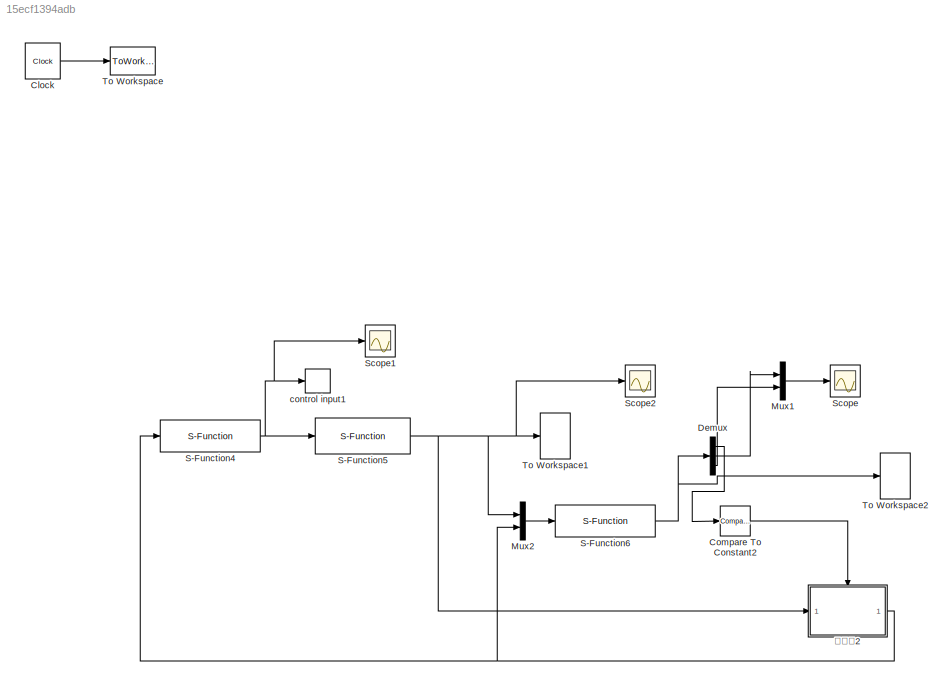
MODEL slx_15ecf1394adb
KIND model
CONFIG AbsTol = auto
CONFIG FixedStep = 0.001
CONFIG MaxStep = auto
CONFIG MinStep = auto
CONFIG RelTol = 1e-3
CONFIG SampleTimeConstraint = Unconstrained
CONFIG Solver = ode4
CONFIG SolverMode = Auto
CONFIG SolverName = ode4
CONFIG StartTime = 0.0
CONFIG StopTime = 5
BLOCK [Clock] Clock
  DisplayTime = on
BLOCK [Reference] Compare To Constant2  REF=simulink/Logic and Bit
Operations/Compare
To Constant
  Ports = [1, 1]
  SourceBlock = simulink/Logic and Bit\nOperations/Compare\nTo Constant
  SourceType = Compare To Constant
BLOCK [Demux] Demux
  DisplayOption = bar
  Outputs = 3
  Ports = [1, 3]
BLOCK [Mux] Mux1
  DisplayOption = bar
  Inputs = 2
  Ports = [2, 1]
BLOCK [Mux] Mux2
  DisplayOption = bar
  Inputs = 2
  Ports = [2, 1]
BLOCK [S-Function] S-Function4
  EnableBusSupport = off
  FunctionName = ctrl
  Ports = [1, 1]
  SFunctionDeploymentMode = off
BLOCK [S-Function] S-Function5
  EnableBusSupport = off
  FunctionName = plant
  Ports = [1, 1]
  SFunctionDeploymentMode = off
BLOCK [S-Function] S-Function6
  EnableBusSupport = off
  FunctionName = trigf
  Ports = [1, 1]
  SFunctionDeploymentMode = off
BLOCK [Scope] Scope
  Floating = off
  NumInputPorts = 1
  Ports = [1]
  ScopeSpecificationString = Simulink.scopes.TimeScopeBlockCfg('CurrentConfiguration', extmgr.ConfigurationSet(extmgr.Configuration('Core','General UI',true),extmgr.Configuration('Core','Source UI',true),extmgr.Configuration('Sources','WiredSimulink',true),extmgr.Configuration('Visuals','Time Domain',true,'SerializedDisplays',{struct('MinYLimReal','-0.88105','MaxYLimReal','7.92945','YLabelReal','','MinYLimMag','0.00000','MaxY...<+1367ch>
BLOCK [Scope] Scope1
  Floating = off
  NumInputPorts = 1
  Ports = [1]
  ScopeSpecificationString = Simulink.scopes.TimeScopeBlockCfg('CurrentConfiguration', extmgr.ConfigurationSet(extmgr.Configuration('Core','General UI',true),extmgr.Configuration('Core','Source UI',true),extmgr.Configuration('Sources','WiredSimulink',true,'DataLoggingVariableName','ScopeData1'),extmgr.Configuration('Visuals','Time Domain',true,'SerializedDisplays',{struct('MinYLimReal','-21.20799','MaxYLimReal','14.10197','YL...<+1472ch>
BLOCK [Scope] Scope2
  Floating = off
  NumInputPorts = 1
  Ports = [1]
  ScopeSpecificationString = Simulink.scopes.TimeScopeBlockCfg('CurrentConfiguration', extmgr.ConfigurationSet(extmgr.Configuration('Core','General UI',true),extmgr.Configuration('Core','Source UI',true),extmgr.Configuration('Sources','WiredSimulink',true,'DataLoggingVariableName','ScopeData2'),extmgr.Configuration('Visuals','Time Domain',true,'SerializedDisplays',{struct('MinYLimReal','-3.875','MaxYLimReal','4.875','YLabelRe...<+1454ch>
BLOCK [ToWorkspace] To Workspace
  MaxDataPoints = inf
  Ports = [1]
  SampleTime = -1
  VariableName = t
BLOCK [ToWorkspace] To Workspace1
  MaxDataPoints = inf
  Ports = [1]
  SampleTime = -1
  VariableName = y1
BLOCK [ToWorkspace] To Workspace2
  MaxDataPoints = inf
  Ports = [1]
  SampleTime = -1
  VariableName = y
BLOCK [ToWorkspace] control input1
  MaxDataPoints = inf
  Ports = [1]
  SampleTime = -1
  VariableName = ut1
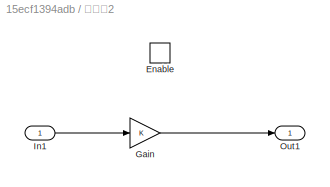
BLOCK [SubSystem] 子系统2
  Ports = [1, 1, 1]
  RequestExecContextInheritance = off
  TreatAsAtomicUnit = on
BLOCK [EnablePort] 子系统2/Enable
  Ports = []
BLOCK [Gain] 子系统2/Gain
  OutDataTypeStr = Inherit: Inherit via internal rule
  ParamDataTypeStr = Inherit: Inherit via internal rule
  SaturateOnIntegerOverflow = off
BLOCK [Inport] 子系统2/In1
  IconDisplay = Port number
BLOCK [Outport] 子系统2/Out1
  IconDisplay = Port number
LINE Clock:1 -> To Workspace:1
LINE Compare To Constant2:1 -> 子系统2:enable
LINE Demux:1 -> Compare To Constant2:1
LINE Demux:2 -> Mux1:1
LINE Demux:3 -> Mux1:2
LINE Mux1:1 -> Scope:1
LINE Mux2:1 -> S-Function6:1
NET S-Function4:1 -> S-Function5:1, Scope1:1, control input1:1
NET S-Function5:1 -> Mux2:1, Scope2:1, To Workspace1:1, 子系统2:1
NET S-Function6:1 -> Demux:1, To Workspace2:1
LINE 子系统2/Gain:1 -> 子系统2/Out1:1
LINE 子系统2/In1:1 -> 子系统2/Gain:1
NET 子系统2:1 -> Mux2:2, S-Function4:1
note: NET lines group one-source signal fan-out (src -> all destinations, sorted); 1:1 wires keep LINE
